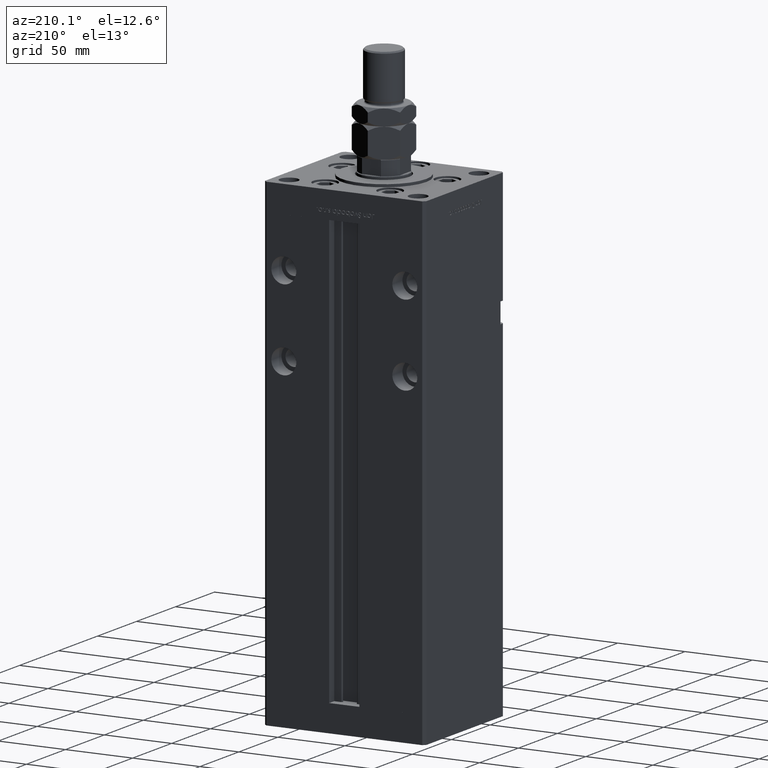
[diagram: clean part render]
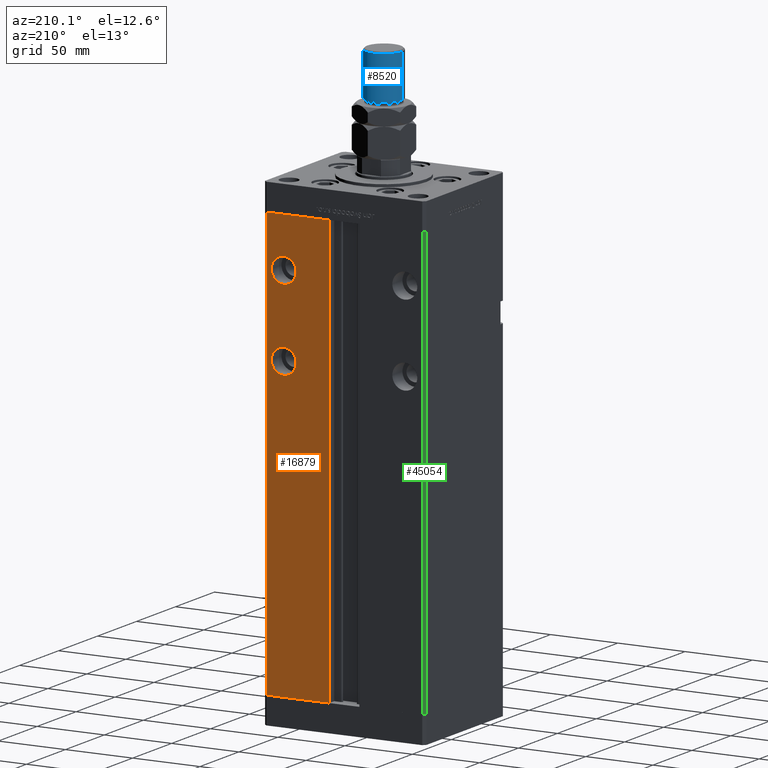
[diagram: same view with three faces highlighted in distinct colors, each labeled with its STEP entity id]
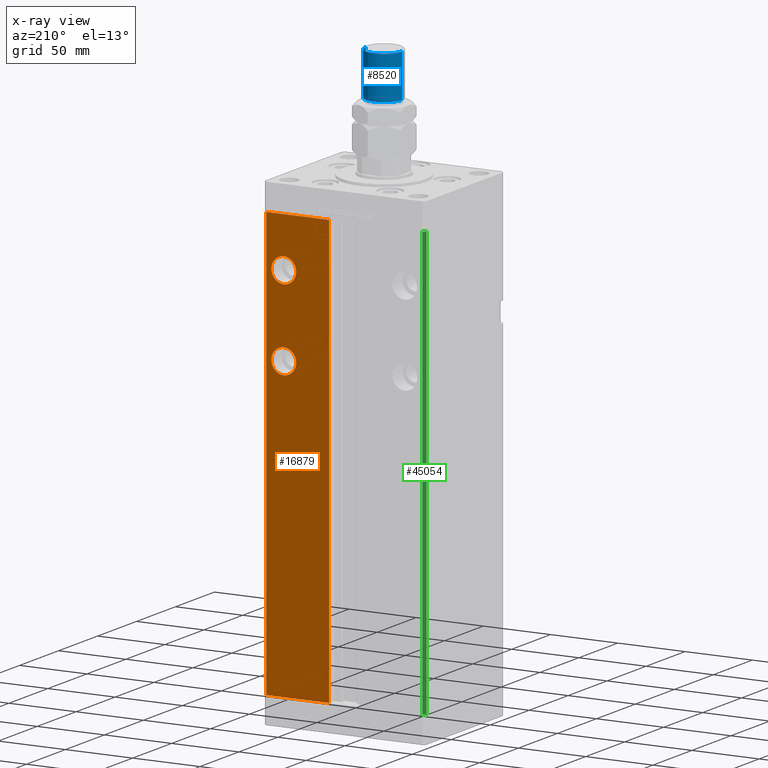
[diagram: x-ray of the same camera — body ghosted, the three highlighted faces saturated]
A machine part, auxiliary view with three faces highlighted in distinct colors.
The next image is the same camera in x-ray (body ghosted, the three faces saturated) — at least one of them is partly hidden behind the body in this view.
Their STEP definitions:

[orange] entity #16879 — the highlighted planar face has unit normal (0, -1, 0).
#27 = CARTESIAN_POINT ( 'NONE',  ( 45.00000000000000000, 51.00000000000000711, 230.7500000000000000 ) ) ;
#645 = EDGE_CURVE ( 'NONE', #13083, #5734, #26577, .T. ) ;
#1143 = DIRECTION ( 'NONE',  ( 0.000000000000000000, -0.000000000000000000, -1.000000000000000000 ) ) ;
#1170 = VERTEX_POINT ( 'NONE', #50683 ) ;
#3766 = LINE ( 'NONE', #33331, #24462 ) ;
#4359 = CARTESIAN_POINT ( 'NONE',  ( 45.00000000000000000, 51.00000000000000711, 221.5000000000000000 ) ) ;
#4923 = AXIS2_PLACEMENT_3D ( 'NONE', #10250, #31531, #1143 ) ;
#5400 = ORIENTED_EDGE ( 'NONE', *, *, #19323, .F. ) ;
#5734 = VERTEX_POINT ( 'NONE', #27 ) ;
#5914 = DIRECTION ( 'NONE',  ( 0.000000000000000000, 0.000000000000000000, 1.000000000000000000 ) ) ;
#7781 = ORIENTED_EDGE ( 'NONE', *, *, #27425, .T. ) ;
#8687 = DIRECTION ( 'NONE',  ( -0.000000000000000000, -0.000000000000000000, -1.000000000000000000 ) ) ;
#9172 = FACE_OUTER_BOUND ( 'NONE', #38494, .T. ) ;
#10250 = CARTESIAN_POINT ( 'NONE',  ( -11.24999999999999822, 51.00000000000000711, 318.5000000000000000 ) ) ;
#11324 = ORIENTED_EDGE ( 'NONE', *, *, #20160, .T. ) ;
#11475 = PLANE ( 'NONE',  #4923 ) ;
#11925 = CIRCLE ( 'NONE', #46326, 9.249999999999980460 ) ;
#12148 = CARTESIAN_POINT ( 'NONE',  ( 45.00000000000000000, 51.00000000000000711, 272.2500000000000000 ) ) ;
#13083 = VERTEX_POINT ( 'NONE', #27456 ) ;
#13772 = VERTEX_POINT ( 'NONE', #12148 ) ;
#14425 = CARTESIAN_POINT ( 'NONE',  ( -11.24999999999999822, 51.00000000000000711, 318.5000000000000000 ) ) ;
#15187 = EDGE_CURVE ( 'NONE', #13772, #36570, #11925, .T. ) ;
#16434 = AXIS2_PLACEMENT_3D ( 'NONE', #4359, #21224, #50224 ) ;
#16879 = ADVANCED_FACE ( 'NONE', ( #30177, #47023, #9172 ), #11475, .F. ) ;
#17448 = EDGE_CURVE ( 'NONE', #5734, #13083, #45527, .T. ) ;
#19323 = EDGE_CURVE ( 'NONE', #36570, #13772, #23545, .T. ) ;
#20151 = LINE ( 'NONE', #50500, #53396 ) ;
#20160 = EDGE_CURVE ( 'NONE', #1170, #45542, #3766, .T. ) ;
#21224 = DIRECTION ( 'NONE',  ( 0.000000000000000000, 1.000000000000000000, -0.000000000000000000 ) ) ;
#21993 = CARTESIAN_POINT ( 'NONE',  ( 45.00000000000000000, 51.00000000000000711, 281.5000000000000000 ) ) ;
#23545 = CIRCLE ( 'NONE', #28817, 9.249999999999980460 ) ;
#24462 = VECTOR ( 'NONE', #54592, 1000.000000000000000 ) ;
#24547 = DIRECTION ( 'NONE',  ( 0.000000000000000000, 0.000000000000000000, -1.000000000000000000 ) ) ;
#25424 = ORIENTED_EDGE ( 'NONE', *, *, #50297, .T. ) ;
#26488 = VECTOR ( 'NONE', #42906, 1000.000000000000000 ) ;
#26577 = CIRCLE ( 'NONE', #31849, 9.250000000000008882 ) ;
#26599 = CARTESIAN_POINT ( 'NONE',  ( 57.99999999999999289, 51.00000000000000711, 0.000000000000000000 ) ) ;
#27195 = DIRECTION ( 'NONE',  ( 0.000000000000000000, 1.000000000000000000, 0.000000000000000000 ) ) ;
#27425 = EDGE_CURVE ( 'NONE', #50451, #43251, #29690, .T. ) ;
#27456 = CARTESIAN_POINT ( 'NONE',  ( 45.00000000000000000, 51.00000000000000711, 212.2500000000000000 ) ) ;
#28817 = AXIS2_PLACEMENT_3D ( 'NONE', #21993, #43782, #34408 ) ;
#29690 = LINE ( 'NONE', #46538, #54146 ) ;
#29919 = CARTESIAN_POINT ( 'NONE',  ( 11.24999999999999112, 51.00000000000000711, 318.5000000000000000 ) ) ;
#30177 = FACE_BOUND ( 'NONE', #49258, .T. ) ;
#31160 = EDGE_CURVE ( 'NONE', #45542, #50451, #38482, .T. ) ;
#31531 = DIRECTION ( 'NONE',  ( 0.000000000000000000, -1.000000000000000000, 0.000000000000000000 ) ) ;
#31849 = AXIS2_PLACEMENT_3D ( 'NONE', #45232, #49665, #24547 ) ;
#33008 = ORIENTED_EDGE ( 'NONE', *, *, #15187, .F. ) ;
#33331 = CARTESIAN_POINT ( 'NONE',  ( 11.24999999999999822, 51.00000000000000711, 0.000000000000000000 ) ) ;
#34408 = DIRECTION ( 'NONE',  ( 0.000000000000000000, 0.000000000000000000, 1.000000000000000000 ) ) ;
#35227 = EDGE_LOOP ( 'NONE', ( #5400, #33008 ) ) ;
#36570 = VERTEX_POINT ( 'NONE', #45350 ) ;
#38482 = LINE ( 'NONE', #14425, #26488 ) ;
#38494 = EDGE_LOOP ( 'NONE', ( #25424, #11324, #46445, #7781 ) ) ;
#39611 = CARTESIAN_POINT ( 'NONE',  ( 45.00000000000000000, 51.00000000000000711, 281.5000000000000000 ) ) ;
#42437 = ORIENTED_EDGE ( 'NONE', *, *, #17448, .F. ) ;
#42906 = DIRECTION ( 'NONE',  ( 1.000000000000000000, 0.000000000000000000, 0.000000000000000000 ) ) ;
#43172 = ORIENTED_EDGE ( 'NONE', *, *, #645, .F. ) ;
#43251 = VERTEX_POINT ( 'NONE', #26599 ) ;
#43782 = DIRECTION ( 'NONE',  ( 0.000000000000000000, 1.000000000000000000, 0.000000000000000000 ) ) ;
#44374 = CARTESIAN_POINT ( 'NONE',  ( 57.99999999999999289, 51.00000000000000711, 318.5000000000000000 ) ) ;
#45232 = CARTESIAN_POINT ( 'NONE',  ( 45.00000000000000000, 51.00000000000000711, 221.5000000000000000 ) ) ;
#45350 = CARTESIAN_POINT ( 'NONE',  ( 45.00000000000000000, 51.00000000000000711, 290.7499999999999432 ) ) ;
#45527 = CIRCLE ( 'NONE', #16434, 9.250000000000008882 ) ;
#45542 = VERTEX_POINT ( 'NONE', #29919 ) ;
#46326 = AXIS2_PLACEMENT_3D ( 'NONE', #39611, #27195, #5914 ) ;
#46358 = DIRECTION ( 'NONE',  ( -1.000000000000000000, 0.000000000000000000, 0.000000000000000000 ) ) ;
#46445 = ORIENTED_EDGE ( 'NONE', *, *, #31160, .T. ) ;
#46538 = CARTESIAN_POINT ( 'NONE',  ( 57.99999999999999289, 51.00000000000000711, 318.5000000000000000 ) ) ;
#47023 = FACE_BOUND ( 'NONE', #35227, .T. ) ;
#49258 = EDGE_LOOP ( 'NONE', ( #42437, #43172 ) ) ;
#49665 = DIRECTION ( 'NONE',  ( 0.000000000000000000, 1.000000000000000000, -0.000000000000000000 ) ) ;
#50224 = DIRECTION ( 'NONE',  ( 0.000000000000000000, 0.000000000000000000, -1.000000000000000000 ) ) ;
#50297 = EDGE_CURVE ( 'NONE', #43251, #1170, #20151, .T. ) ;
#50451 = VERTEX_POINT ( 'NONE', #44374 ) ;
#50500 = CARTESIAN_POINT ( 'NONE',  ( -11.24999999999999822, 51.00000000000000711, 0.000000000000000000 ) ) ;
#50683 = CARTESIAN_POINT ( 'NONE',  ( 11.24999999999999822, 51.00000000000000711, 0.000000000000000000 ) ) ;
#53396 = VECTOR ( 'NONE', #46358, 1000.000000000000000 ) ;
#54146 = VECTOR ( 'NONE', #8687, 1000.000000000000000 ) ;
#54592 = DIRECTION ( 'NONE',  ( -0.000000000000000000, -0.000000000000000000, 1.000000000000000000 ) ) ;

[blue] entity #8520 — the highlighted cylindrical surface (edge-blend (fillet) strip) has radius 13.5 mm, axis along (-0, -0, -1).
#2531 = VERTEX_POINT ( 'NONE', #46960 ) ;
#2597 = DIRECTION ( 'NONE',  ( -0.000000000000000000, -0.000000000000000000, -1.000000000000000000 ) ) ;
#3619 = LINE ( 'NONE', #33455, #54069 ) ;
#4155 = EDGE_CURVE ( 'NONE', #6049, #20572, #3619, .T. ) ;
#4182 = VERTEX_POINT ( 'NONE', #41466 ) ;
#6049 = VERTEX_POINT ( 'NONE', #46926 ) ;
#6487 = DIRECTION ( 'NONE',  ( -1.000000000000000000, 0.000000000000000000, 0.000000000000000000 ) ) ;
#7268 = CIRCLE ( 'NONE', #54045, 13.50000000000000000 ) ;
#7466 = AXIS2_PLACEMENT_3D ( 'NONE', #24007, #32823, #32553 ) ;
#8520 = ADVANCED_FACE ( 'NONE', ( #28033 ), #44317, .T. ) ;
#11972 = DIRECTION ( 'NONE',  ( 0.000000000000000000, 0.000000000000000000, -1.000000000000000000 ) ) ;
#15263 = ORIENTED_EDGE ( 'NONE', *, *, #33774, .T. ) ;
#17153 = CARTESIAN_POINT ( 'NONE',  ( 13.50000000000000000, 1.653273178848926867E-15, 70.00000000000000000 ) ) ;
#18320 = CARTESIAN_POINT ( 'NONE',  ( -13.50000000000000000, 0.000000000000000000, 37.00000000000000000 ) ) ;
#20284 = CARTESIAN_POINT ( 'NONE',  ( 0.000000000000000000, 0.000000000000000000, 68.99999999999998579 ) ) ;
#20572 = VERTEX_POINT ( 'NONE', #18320 ) ;
#23893 = CARTESIAN_POINT ( 'NONE',  ( 0.000000000000000000, 0.000000000000000000, 70.00000000000000000 ) ) ;
#24007 = CARTESIAN_POINT ( 'NONE',  ( 0.000000000000000000, 0.000000000000000000, 37.00000000000000000 ) ) ;
#28033 = FACE_OUTER_BOUND ( 'NONE', #31487, .T. ) ;
#28652 = CIRCLE ( 'NONE', #7466, 13.50000000000000000 ) ;
#31487 = EDGE_LOOP ( 'NONE', ( #34077, #15263, #34371, #50572 ) ) ;
#32553 = DIRECTION ( 'NONE',  ( 1.000000000000000000, 0.000000000000000000, 0.000000000000000000 ) ) ;
#32823 = DIRECTION ( 'NONE',  ( -0.000000000000000000, -0.000000000000000000, 1.000000000000000000 ) ) ;
#33455 = CARTESIAN_POINT ( 'NONE',  ( -13.50000000000000000, 0.000000000000000000, 70.00000000000000000 ) ) ;
#33712 = LINE ( 'NONE', #17153, #46868 ) ;
#33774 = EDGE_CURVE ( 'NONE', #2531, #4182, #33712, .T. ) ;
#33994 = DIRECTION ( 'NONE',  ( -0.000000000000000000, -0.000000000000000000, -1.000000000000000000 ) ) ;
#34077 = ORIENTED_EDGE ( 'NONE', *, *, #42253, .T. ) ;
#34371 = ORIENTED_EDGE ( 'NONE', *, *, #48569, .T. ) ;
#35562 = AXIS2_PLACEMENT_3D ( 'NONE', #23893, #2597, #6487 ) ;
#40452 = DIRECTION ( 'NONE',  ( -0.000000000000000000, -0.000000000000000000, -1.000000000000000000 ) ) ;
#41466 = CARTESIAN_POINT ( 'NONE',  ( 13.50000000000000000, 1.653273178848926867E-15, 37.00000000000000000 ) ) ;
#42253 = EDGE_CURVE ( 'NONE', #6049, #2531, #7268, .T. ) ;
#44317 = CYLINDRICAL_SURFACE ( 'NONE', #35562, 13.50000000000000000 ) ;
#46868 = VECTOR ( 'NONE', #33994, 1000.000000000000000 ) ;
#46926 = CARTESIAN_POINT ( 'NONE',  ( -13.50000000000000000, 0.000000000000000000, 68.99999999999998579 ) ) ;
#46960 = CARTESIAN_POINT ( 'NONE',  ( 13.50000000000000000, 1.653273178848926867E-15, 68.99999999999998579 ) ) ;
#48569 = EDGE_CURVE ( 'NONE', #4182, #20572, #28652, .T. ) ;
#49284 = DIRECTION ( 'NONE',  ( 1.000000000000000000, 0.000000000000000000, 0.000000000000000000 ) ) ;
#50572 = ORIENTED_EDGE ( 'NONE', *, *, #4155, .F. ) ;
#54045 = AXIS2_PLACEMENT_3D ( 'NONE', #20284, #11972, #49284 ) ;
#54069 = VECTOR ( 'NONE', #40452, 1000.000000000000000 ) ;

[green] entity #45054 — the highlighted planar face has unit normal (0.7071, -0.7071, 0).
#812 = DIRECTION ( 'NONE',  ( 0.7071067811865500152, 0.7071067811865451302, 0.000000000000000000 ) ) ;
#1367 = PLANE ( 'NONE',  #25904 ) ;
#1626 = CARTESIAN_POINT ( 'NONE',  ( -60.00000000000001421, 49.00000000000000000, 318.5000000000000000 ) ) ;
#3491 = VECTOR ( 'NONE', #51914, 1000.000000000000000 ) ;
#4053 = DIRECTION ( 'NONE',  ( -0.7071067811865500152, -0.7071067811865451302, 0.000000000000000000 ) ) ;
#6406 = VECTOR ( 'NONE', #42518, 1000.000000000000114 ) ;
#8983 = ORIENTED_EDGE ( 'NONE', *, *, #29048, .F. ) ;
#9365 = VECTOR ( 'NONE', #4053, 1000.000000000000114 ) ;
#13813 = CARTESIAN_POINT ( 'NONE',  ( -57.99999999999999289, 51.00000000000000711, 318.5000000000000000 ) ) ;
#15275 = CARTESIAN_POINT ( 'NONE',  ( -57.99999999999999289, 51.00000000000000711, 0.000000000000000000 ) ) ;
#16496 = CARTESIAN_POINT ( 'NONE',  ( -57.99999999999999289, 51.00000000000000711, 0.000000000000000000 ) ) ;
#17519 = EDGE_LOOP ( 'NONE', ( #22353, #8983, #20661, #44742 ) ) ;
#17573 = VERTEX_POINT ( 'NONE', #22048 ) ;
#17970 = FACE_OUTER_BOUND ( 'NONE', #17519, .T. ) ;
#20661 = ORIENTED_EDGE ( 'NONE', *, *, #38720, .F. ) ;
#21073 = EDGE_CURVE ( 'NONE', #46839, #17573, #33603, .T. ) ;
#22048 = CARTESIAN_POINT ( 'NONE',  ( -60.00000000000001421, 49.00000000000000000, 0.000000000000000000 ) ) ;
#22353 = ORIENTED_EDGE ( 'NONE', *, *, #21073, .T. ) ;
#25823 = VECTOR ( 'NONE', #51282, 1000.000000000000000 ) ;
#25904 = AXIS2_PLACEMENT_3D ( 'NONE', #13813, #43102, #812 ) ;
#29048 = EDGE_CURVE ( 'NONE', #32654, #17573, #48039, .T. ) ;
#30725 = CARTESIAN_POINT ( 'NONE',  ( -57.99999999999999289, 51.00000000000000711, 318.5000000000000000 ) ) ;
#31318 = CARTESIAN_POINT ( 'NONE',  ( -60.00000000000001421, 49.00000000000000000, 318.5000000000000000 ) ) ;
#32654 = VERTEX_POINT ( 'NONE', #31318 ) ;
#33603 = LINE ( 'NONE', #16496, #9365 ) ;
#33953 = LINE ( 'NONE', #50799, #6406 ) ;
#34436 = CARTESIAN_POINT ( 'NONE',  ( -57.99999999999999289, 51.00000000000000711, 318.5000000000000000 ) ) ;
#37576 = EDGE_CURVE ( 'NONE', #44812, #46839, #44072, .T. ) ;
#38720 = EDGE_CURVE ( 'NONE', #44812, #32654, #33953, .T. ) ;
#42518 = DIRECTION ( 'NONE',  ( -0.7071067811865500152, -0.7071067811865451302, 0.000000000000000000 ) ) ;
#43102 = DIRECTION ( 'NONE',  ( 0.7071067811865451302, -0.7071067811865500152, 0.000000000000000000 ) ) ;
#44072 = LINE ( 'NONE', #34436, #25823 ) ;
#44742 = ORIENTED_EDGE ( 'NONE', *, *, #37576, .T. ) ;
#44812 = VERTEX_POINT ( 'NONE', #30725 ) ;
#45054 = ADVANCED_FACE ( 'NONE', ( #17970 ), #1367, .F. ) ;
#46839 = VERTEX_POINT ( 'NONE', #15275 ) ;
#48039 = LINE ( 'NONE', #1626, #3491 ) ;
#50799 = CARTESIAN_POINT ( 'NONE',  ( -57.99999999999999289, 51.00000000000000711, 318.5000000000000000 ) ) ;
#51282 = DIRECTION ( 'NONE',  ( -0.000000000000000000, -0.000000000000000000, -1.000000000000000000 ) ) ;
#51914 = DIRECTION ( 'NONE',  ( -0.000000000000000000, -0.000000000000000000, -1.000000000000000000 ) ) ;